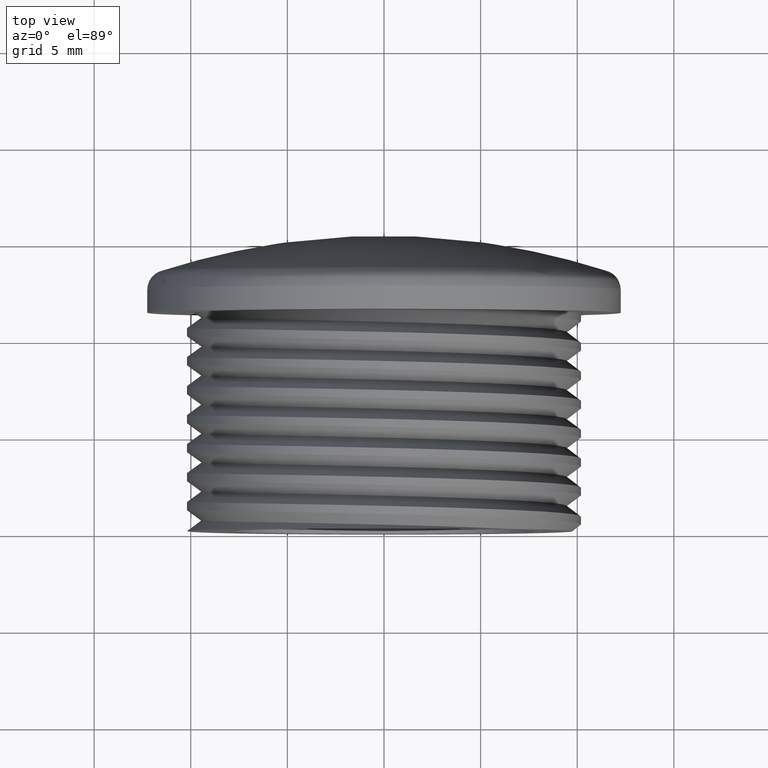
[diagram: clean part render]
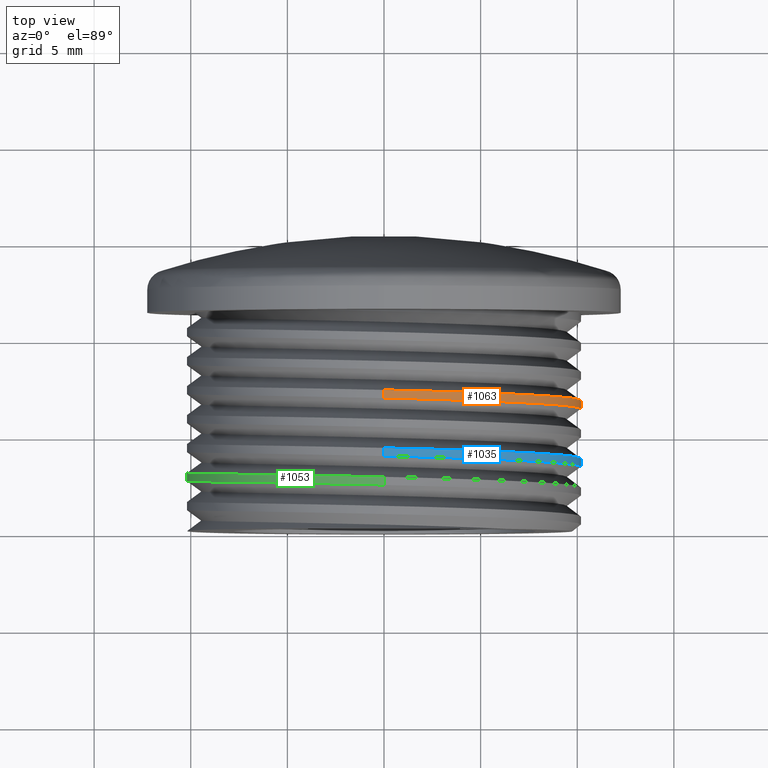
[diagram: same view with three faces highlighted in distinct colors, each labeled with its STEP entity id]
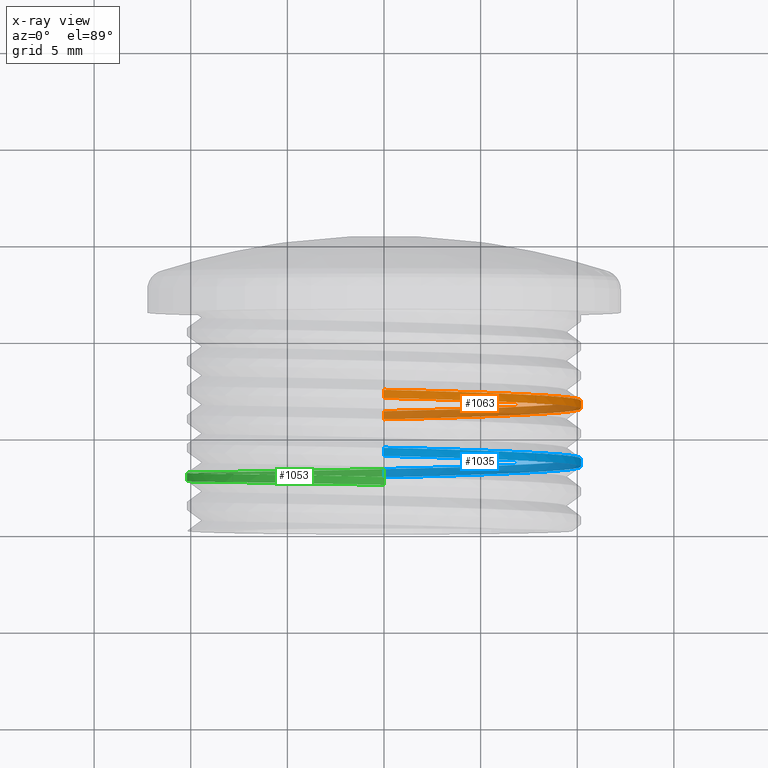
[diagram: x-ray of the same camera — body ghosted, the three highlighted faces saturated]
A machine part, top view with three faces highlighted in distinct colors.
The next image is the same camera in x-ray (body ghosted, the three faces saturated) — at least one of them is partly hidden behind the body in this view.
Their STEP definitions:

[orange] entity #1063 — the highlighted cylindrical surface (partial cylindrical patch) has radius 10.2 mm, axis along (-0, -1, -0).
#395 = VERTEX_POINT ( 'NONE', #880 ) ;
#412 = VERTEX_POINT ( 'NONE', #481 ) ;
#432 = VERTEX_POINT ( 'NONE', #492 ) ;
#444 = VERTEX_POINT ( 'NONE', #507 ) ;
#481 = CARTESIAN_POINT ( 'NONE',  ( -1.873709602695449700E-015, 6.771218227850093600, 10.19999999999999800 ) ) ;
#492 = CARTESIAN_POINT ( 'NONE',  ( -1.873709602695450400E-015, 7.194690285272764100, 10.20000000000000100 ) ) ;
#507 = CARTESIAN_POINT ( 'NONE',  ( 6.245698675651501800E-016, 6.021218227850093600, -10.19999999999999900 ) ) ;
#585 = CARTESIAN_POINT ( 'NONE',  ( 4.224978336205571100, 7.100940285272765000, 10.19999999999999900 ) ) ;
#592 = CARTESIAN_POINT ( 'NONE',  ( 10.19999999999999800, 6.819690285272764100, 2.498279470260600300E-015 ) ) ;
#593 = CARTESIAN_POINT ( 'NONE',  ( 10.19999999999999900, 6.913440285272764100, 4.224978336205575500 ) ) ;
#603 = CARTESIAN_POINT ( 'NONE',  ( 7.212489168102782100, 7.007190285272765000, 7.212489168102784700 ) ) ;
#604 = CARTESIAN_POINT ( 'NONE',  ( -1.873709602695450400E-015, 7.194690285272764100, 10.20000000000000100 ) ) ;
#615 = CARTESIAN_POINT ( 'NONE',  ( 4.224978336194843600, 6.538440285272431000, -10.20000000001072500 ) ) ;
#625 = CARTESIAN_POINT ( 'NONE',  ( 7.212489168102783800, 6.632190285272765000, -7.212489168102782100 ) ) ;
#627 = CARTESIAN_POINT ( 'NONE',  ( 10.19999999999999900, 6.725940285272765900, -4.224978336205567500 ) ) ;
#634 = CARTESIAN_POINT ( 'NONE',  ( -2.589704294783110600E-011, 6.444690285272189500, -10.20000000000000100 ) ) ;
#710 = ORIENTED_EDGE ( 'NONE', *, *, #958, .T. ) ;
#711 = ORIENTED_EDGE ( 'NONE', *, *, #945, .T. ) ;
#757 = ORIENTED_EDGE ( 'NONE', *, *, #959, .F. ) ;
#761 = ORIENTED_EDGE ( 'NONE', *, *, #968, .T. ) ;
#880 = CARTESIAN_POINT ( 'NONE',  ( -2.589704294783110600E-011, 6.444690285272189500, -10.20000000000000100 ) ) ;
#887 = EDGE_LOOP ( 'NONE', ( #711, #710, #761, #757 ) ) ;
#945 = EDGE_CURVE ( 'NONE', #395, #432, #2822, .T. ) ;
#958 = EDGE_CURVE ( 'NONE', #432, #412, #1981, .T. ) ;
#959 = EDGE_CURVE ( 'NONE', #395, #444, #2893, .T. ) ;
#968 = EDGE_CURVE ( 'NONE', #412, #444, #2816, .T. ) ;
#1063 = ADVANCED_FACE ( 'NONE', ( #1416 ), #1389, .T. ) ;
#1384 = DIRECTION ( 'NONE',  ( 0.0000000000000000000, 0.0000000000000000000, -1.000000000000000000 ) ) ;
#1389 = CYLINDRICAL_SURFACE ( 'NONE', #2292, 10.19999999999999900 ) ;
#1416 = FACE_OUTER_BOUND ( 'NONE', #887, .T. ) ;
#1417 = CARTESIAN_POINT ( 'NONE',  ( 0.0000000000000000000, 43.56375321664928200, 0.0000000000000000000 ) ) ;
#1428 = DIRECTION ( 'NONE',  ( -0.0000000000000000000, -1.000000000000000000, -0.0000000000000000000 ) ) ;
#1981 = LINE ( 'NONE', #1984, #2195 ) ;
#1984 = CARTESIAN_POINT ( 'NONE',  ( 1.249139735130300200E-015, 43.56375321664928200, 10.19999999999999900 ) ) ;
#1985 = DIRECTION ( 'NONE',  ( -0.0000000000000000000, -1.000000000000000000, -0.0000000000000000000 ) ) ;
#2191 = VECTOR ( 'NONE', #2895, 1000.000000000000000 ) ;
#2195 = VECTOR ( 'NONE', #1985, 1000.000000000000000 ) ;
#2292 = AXIS2_PLACEMENT_3D ( 'NONE', #1417, #1428, #1384 ) ;
#2816 =( BOUNDED_CURVE ( )  B_SPLINE_CURVE ( 2, ( #2857, #2861, #2863, #2864, #2858, #2862, #2872, #2867, #2873 ),
 .UNSPECIFIED., .F., .F. ) 
 B_SPLINE_CURVE_WITH_KNOTS ( ( 3, 2, 2, 2, 3 ),
 ( 0.1968861978242698900, 0.2049360629913705700, 0.2129859281584712000, 0.2210357933255718800, 0.2290856584926725100 ),
 .UNSPECIFIED. ) 
 CURVE ( )  GEOMETRIC_REPRESENTATION_ITEM ( )  RATIONAL_B_SPLINE_CURVE ( ( 1.000000000000000000, 0.9238795325112867400, 1.000000000000000000, 0.9238795325112867400, 1.000000000000000000, 0.9238795325112867400, 1.000000000000000000, 0.9238795325112867400, 1.000000000000000000 ) ) 
 REPRESENTATION_ITEM ( '' )  );
#2822 =( BOUNDED_CURVE ( )  B_SPLINE_CURVE ( 2, ( #634, #615, #625, #627, #592, #593, #603, #585, #604 ),
 .UNSPECIFIED., .F., .F. ) 
 B_SPLINE_CURVE_WITH_KNOTS ( ( 3, 2, 2, 2, 3 ),
 ( 0.2827666825476962700, 0.2908159962688231500, 0.2988653099899499800, 0.3069146237110768600, 0.3149639374322036900 ),
 .UNSPECIFIED. ) 
 CURVE ( )  GEOMETRIC_REPRESENTATION_ITEM ( )  RATIONAL_B_SPLINE_CURVE ( ( 1.000000000000252500, 0.9238795325110342700, 1.000000000000000000, 0.9238795325112867400, 1.000000000000000000, 0.9238795325112867400, 1.000000000000000000, 0.9238795325112867400, 1.000000000000000000 ) ) 
 REPRESENTATION_ITEM ( '' )  );
#2857 = CARTESIAN_POINT ( 'NONE',  ( -1.873709602695449700E-015, 6.771218227850093600, 10.19999999999999800 ) ) ;
#2858 = CARTESIAN_POINT ( 'NONE',  ( 10.19999999999999800, 6.396218227850093600, 2.498279470260600700E-015 ) ) ;
#2861 = CARTESIAN_POINT ( 'NONE',  ( 4.224978336205571900, 6.677468227850096300, 10.20000000000000300 ) ) ;
#2862 = CARTESIAN_POINT ( 'NONE',  ( 10.20000000000000300, 6.302468227850093600, -4.224978336205568400 ) ) ;
#2863 = CARTESIAN_POINT ( 'NONE',  ( 7.212489168102783000, 6.583718227850093600, 7.212489168102785600 ) ) ;
#2864 = CARTESIAN_POINT ( 'NONE',  ( 10.20000000000000300, 6.489968227850093600, 4.224978336205575500 ) ) ;
#2867 = CARTESIAN_POINT ( 'NONE',  ( 4.224978336205571900, 6.114968227850092800, -10.20000000000000300 ) ) ;
#2872 = CARTESIAN_POINT ( 'NONE',  ( 7.212489168102783800, 6.208718227850092800, -7.212489168102783000 ) ) ;
#2873 = CARTESIAN_POINT ( 'NONE',  ( 6.245698675651501800E-016, 6.021218227850093600, -10.19999999999999900 ) ) ;
#2893 = LINE ( 'NONE', #2894, #2191 ) ;
#2894 = CARTESIAN_POINT ( 'NONE',  ( 0.0000000000000000000, 43.56375321664928200, -10.19999999999999900 ) ) ;
#2895 = DIRECTION ( 'NONE',  ( -0.0000000000000000000, -1.000000000000000000, -0.0000000000000000000 ) ) ;

[blue] entity #1035 — the highlighted cylindrical surface (partial cylindrical patch) has radius 10.2 mm, axis along (-0, -1, -0).
#23 = CARTESIAN_POINT ( 'NONE',  ( 6.245698675651501800E-016, 3.444690285272764100, -10.19999999999999900 ) ) ;
#24 = CARTESIAN_POINT ( 'NONE',  ( 4.224978336205571900, 3.538440285272765000, -10.20000000000000300 ) ) ;
#409 = VERTEX_POINT ( 'NONE', #906 ) ;
#429 = VERTEX_POINT ( 'NONE', #477 ) ;
#430 = VERTEX_POINT ( 'NONE', #478 ) ;
#475 = VERTEX_POINT ( 'NONE', #518 ) ;
#477 = CARTESIAN_POINT ( 'NONE',  ( 6.245698675651501800E-016, 3.444690285272764100, -10.19999999999999900 ) ) ;
#478 = CARTESIAN_POINT ( 'NONE',  ( -1.873709602695450100E-015, 4.194690285272764100, 10.19999999999999900 ) ) ;
#518 = CARTESIAN_POINT ( 'NONE',  ( -1.873709602695450100E-015, 3.771218227850093600, 10.19999999999999900 ) ) ;
#569 = LINE ( 'NONE', #581, #2173 ) ;
#577 = DIRECTION ( 'NONE',  ( -0.0000000000000000000, -1.000000000000000000, -0.0000000000000000000 ) ) ;
#581 = CARTESIAN_POINT ( 'NONE',  ( 0.0000000000000000000, 43.56375321664928200, -10.19999999999999900 ) ) ;
#589 = CARTESIAN_POINT ( 'NONE',  ( -1.873709602695450100E-015, 3.771218227850093600, 10.19999999999999900 ) ) ;
#590 = CARTESIAN_POINT ( 'NONE',  ( 10.20000000000000500, 3.489968227850095000, 4.224978336205577300 ) ) ;
#594 = CARTESIAN_POINT ( 'NONE',  ( 4.224978336205560400, 3.114968227850094500, -10.20000000000002100 ) ) ;
#621 = CARTESIAN_POINT ( 'NONE',  ( 4.224978336205572800, 3.677468227850094100, 10.20000000000000500 ) ) ;
#622 = CARTESIAN_POINT ( 'NONE',  ( 6.245698675651500800E-016, 3.021218227850091900, -10.19999999999999800 ) ) ;
#623 = CARTESIAN_POINT ( 'NONE',  ( 7.212489168102784700, 3.583718227850094500, 7.212489168102786500 ) ) ;
#624 = CARTESIAN_POINT ( 'NONE',  ( 10.20000000000000100, 3.396218227850095000, 2.498279470260601100E-015 ) ) ;
#632 = CARTESIAN_POINT ( 'NONE',  ( 10.20000000000000500, 3.302468227850094500, -4.224978336205569300 ) ) ;
#633 = CARTESIAN_POINT ( 'NONE',  ( 7.212489168102785600, 3.208718227850094100, -7.212489168102784700 ) ) ;
#704 = ORIENTED_EDGE ( 'NONE', *, *, #944, .T. ) ;
#708 = ORIENTED_EDGE ( 'NONE', *, *, #957, .T. ) ;
#713 = ORIENTED_EDGE ( 'NONE', *, *, #963, .T. ) ;
#716 = ORIENTED_EDGE ( 'NONE', *, *, #941, .F. ) ;
#894 = EDGE_LOOP ( 'NONE', ( #713, #708, #704, #716 ) ) ;
#906 = CARTESIAN_POINT ( 'NONE',  ( 6.245698675651500800E-016, 3.021218227850091900, -10.19999999999999800 ) ) ;
#941 = EDGE_CURVE ( 'NONE', #429, #409, #569, .T. ) ;
#944 = EDGE_CURVE ( 'NONE', #475, #409, #2815, .T. ) ;
#957 = EDGE_CURVE ( 'NONE', #430, #475, #1987, .T. ) ;
#963 = EDGE_CURVE ( 'NONE', #429, #430, #2830, .T. ) ;
#1035 = ADVANCED_FACE ( 'NONE', ( #2016 ), #2002, .T. ) ;
#1714 = CARTESIAN_POINT ( 'NONE',  ( 4.224978336205571900, 4.100940285272765000, 10.20000000000000300 ) ) ;
#1716 = CARTESIAN_POINT ( 'NONE',  ( 7.212489168102783800, 4.007190285272763200, 7.212489168102785600 ) ) ;
#1718 = CARTESIAN_POINT ( 'NONE',  ( 10.20000000000000300, 3.725940285272764600, -4.224978336205568400 ) ) ;
#1719 = CARTESIAN_POINT ( 'NONE',  ( 7.212489168102784700, 3.632190285272764600, -7.212489168102783800 ) ) ;
#1720 = CARTESIAN_POINT ( 'NONE',  ( 10.19999999999999800, 3.819690285272764600, 2.498279470260600700E-015 ) ) ;
#1721 = CARTESIAN_POINT ( 'NONE',  ( -1.873709602695450100E-015, 4.194690285272764100, 10.19999999999999900 ) ) ;
#1723 = CARTESIAN_POINT ( 'NONE',  ( 10.20000000000000300, 3.913440285272765400, 4.224978336205575500 ) ) ;
#1979 = CARTESIAN_POINT ( 'NONE',  ( 1.249139735130300200E-015, 43.56375321664928200, 10.19999999999999900 ) ) ;
#1980 = DIRECTION ( 'NONE',  ( -0.0000000000000000000, -1.000000000000000000, -0.0000000000000000000 ) ) ;
#1987 = LINE ( 'NONE', #1979, #2218 ) ;
#2002 = CYLINDRICAL_SURFACE ( 'NONE', #2266, 10.19999999999999900 ) ;
#2008 = DIRECTION ( 'NONE',  ( 0.0000000000000000000, 0.0000000000000000000, -1.000000000000000000 ) ) ;
#2016 = FACE_OUTER_BOUND ( 'NONE', #894, .T. ) ;
#2017 = DIRECTION ( 'NONE',  ( -0.0000000000000000000, -1.000000000000000000, -0.0000000000000000000 ) ) ;
#2018 = CARTESIAN_POINT ( 'NONE',  ( 0.0000000000000000000, 43.56375321664928200, 0.0000000000000000000 ) ) ;
#2173 = VECTOR ( 'NONE', #577, 1000.000000000000000 ) ;
#2218 = VECTOR ( 'NONE', #1980, 1000.000000000000000 ) ;
#2266 = AXIS2_PLACEMENT_3D ( 'NONE', #2018, #2017, #2008 ) ;
#2815 =( BOUNDED_CURVE ( )  B_SPLINE_CURVE ( 2, ( #589, #621, #623, #590, #624, #632, #633, #594, #622 ),
 .UNSPECIFIED., .F., .T. ) 
 B_SPLINE_CURVE_WITH_KNOTS ( ( 3, 2, 2, 2, 3 ),
 ( 0.3256693207485801300, 0.3337185120556136500, 0.3417677033626471700, 0.3498168946696806900, 0.3578660859767142100 ),
 .UNSPECIFIED. ) 
 CURVE ( )  GEOMETRIC_REPRESENTATION_ITEM ( )  RATIONAL_B_SPLINE_CURVE ( ( 1.000000000000000000, 0.9238795325112867400, 1.000000000000000000, 0.9238795325112867400, 1.000000000000000000, 0.9238795325112867400, 1.000000000000000000, 0.9238795325112864100, 1.000000000000000200 ) ) 
 REPRESENTATION_ITEM ( '' )  );
#2830 =( BOUNDED_CURVE ( )  B_SPLINE_CURVE ( 2, ( #23, #24, #1719, #1718, #1720, #1723, #1716, #1714, #1721 ),
 .UNSPECIFIED., .F., .T. ) 
 B_SPLINE_CURVE_WITH_KNOTS ( ( 3, 2, 2, 2, 3 ),
 ( 0.1539921737597743900, 0.1620395801039442000, 0.1700869864481139900, 0.1781343927922838000, 0.1861817991364536100 ),
 .UNSPECIFIED. ) 
 CURVE ( )  GEOMETRIC_REPRESENTATION_ITEM ( )  RATIONAL_B_SPLINE_CURVE ( ( 1.000000000000000000, 0.9238795325112867400, 1.000000000000000000, 0.9238795325112867400, 1.000000000000000000, 0.9238795325112867400, 1.000000000000000000, 0.9238795325112867400, 1.000000000000000000 ) ) 
 REPRESENTATION_ITEM ( '' )  );

[green] entity #1053 — the highlighted cylindrical surface (partial cylindrical patch) has radius 10.2 mm, axis along (-0, -1, -0).
#409 = VERTEX_POINT ( 'NONE', #906 ) ;
#426 = VERTEX_POINT ( 'NONE', #465 ) ;
#429 = VERTEX_POINT ( 'NONE', #477 ) ;
#441 = VERTEX_POINT ( 'NONE', #528 ) ;
#465 = CARTESIAN_POINT ( 'NONE',  ( -1.873709602695450100E-015, 2.694690285272763200, 10.19999999999999900 ) ) ;
#477 = CARTESIAN_POINT ( 'NONE',  ( 6.245698675651501800E-016, 3.444690285272764100, -10.19999999999999900 ) ) ;
#528 = CARTESIAN_POINT ( 'NONE',  ( -1.282589943222705400E-011, 2.271218227850378300, 10.20000000000000100 ) ) ;
#569 = LINE ( 'NONE', #581, #2173 ) ;
#577 = DIRECTION ( 'NONE',  ( -0.0000000000000000000, -1.000000000000000000, -0.0000000000000000000 ) ) ;
#581 = CARTESIAN_POINT ( 'NONE',  ( 0.0000000000000000000, 43.56375321664928200, -10.19999999999999900 ) ) ;
#779 = ORIENTED_EDGE ( 'NONE', *, *, #1019, .T. ) ;
#786 = ORIENTED_EDGE ( 'NONE', *, *, #964, .F. ) ;
#796 = ORIENTED_EDGE ( 'NONE', *, *, #986, .T. ) ;
#833 = ORIENTED_EDGE ( 'NONE', *, *, #941, .T. ) ;
#906 = CARTESIAN_POINT ( 'NONE',  ( 6.245698675651500800E-016, 3.021218227850091900, -10.19999999999999800 ) ) ;
#922 = EDGE_LOOP ( 'NONE', ( #786, #779, #833, #796 ) ) ;
#941 = EDGE_CURVE ( 'NONE', #429, #409, #569, .T. ) ;
#964 = EDGE_CURVE ( 'NONE', #426, #441, #1729, .T. ) ;
#986 = EDGE_CURVE ( 'NONE', #409, #441, #2843, .T. ) ;
#1019 = EDGE_CURVE ( 'NONE', #426, #429, #2836, .T. ) ;
#1053 = ADVANCED_FACE ( 'NONE', ( #1327 ), #1366, .T. ) ;
#1327 = FACE_OUTER_BOUND ( 'NONE', #922, .T. ) ;
#1339 = CARTESIAN_POINT ( 'NONE',  ( 0.0000000000000000000, 43.56375321664928200, 0.0000000000000000000 ) ) ;
#1346 = DIRECTION ( 'NONE',  ( -0.0000000000000000000, -1.000000000000000000, -0.0000000000000000000 ) ) ;
#1350 = DIRECTION ( 'NONE',  ( 0.0000000000000000000, 0.0000000000000000000, -1.000000000000000000 ) ) ;
#1366 = CYLINDRICAL_SURFACE ( 'NONE', #2245, 10.19999999999999900 ) ;
#1729 = LINE ( 'NONE', #1731, #2193 ) ;
#1731 = CARTESIAN_POINT ( 'NONE',  ( 1.249139735130300200E-015, 43.56375321664928200, 10.19999999999999900 ) ) ;
#1733 = DIRECTION ( 'NONE',  ( -0.0000000000000000000, -1.000000000000000000, -0.0000000000000000000 ) ) ;
#2173 = VECTOR ( 'NONE', #577, 1000.000000000000000 ) ;
#2193 = VECTOR ( 'NONE', #1733, 1000.000000000000000 ) ;
#2245 = AXIS2_PLACEMENT_3D ( 'NONE', #1339, #1346, #1350 ) ;
#2355 = CARTESIAN_POINT ( 'NONE',  ( -10.20000000000000100, 2.552468227850095400, 4.224978336205567500 ) ) ;
#2356 = CARTESIAN_POINT ( 'NONE',  ( -10.20000000000000100, 2.646218227850094500, -1.249139735130300600E-015 ) ) ;
#2360 = CARTESIAN_POINT ( 'NONE',  ( -10.20000000000000100, 2.739968227850094100, -4.224978336205572800 ) ) ;
#2362 = CARTESIAN_POINT ( 'NONE',  ( 6.245698675651500800E-016, 3.021218227850091900, -10.19999999999999800 ) ) ;
#2364 = CARTESIAN_POINT ( 'NONE',  ( -7.212489168102785600, 2.458718227850094100, 7.212489168102783800 ) ) ;
#2365 = CARTESIAN_POINT ( 'NONE',  ( -4.224978336210887700, 2.364968227850261500, 10.19999999999469300 ) ) ;
#2373 = CARTESIAN_POINT ( 'NONE',  ( -1.282589943222705400E-011, 2.271218227850378300, 10.20000000000000100 ) ) ;
#2376 = CARTESIAN_POINT ( 'NONE',  ( -7.212489168102783800, 2.833718227850093600, -7.212489168102784700 ) ) ;
#2378 = CARTESIAN_POINT ( 'NONE',  ( -4.224978336205582600, 2.927468227850094100, -10.19999999999999200 ) ) ;
#2670 = CARTESIAN_POINT ( 'NONE',  ( -1.873709602695450100E-015, 2.694690285272763200, 10.19999999999999900 ) ) ;
#2681 = CARTESIAN_POINT ( 'NONE',  ( -10.19999999999999600, 3.069690285272766300, -1.249139735130300200E-015 ) ) ;
#2693 = CARTESIAN_POINT ( 'NONE',  ( -10.20000000000000100, 2.975940285272766800, 4.224978336205566600 ) ) ;
#2703 = CARTESIAN_POINT ( 'NONE',  ( -4.224978336205567500, 3.350940285272765400, -10.20000000000000100 ) ) ;
#2704 = CARTESIAN_POINT ( 'NONE',  ( -4.224978336205573700, 2.788440285272765400, 10.20000000000000100 ) ) ;
#2713 = CARTESIAN_POINT ( 'NONE',  ( 6.245698675651501800E-016, 3.444690285272764100, -10.19999999999999900 ) ) ;
#2717 = CARTESIAN_POINT ( 'NONE',  ( -10.20000000000000100, 3.163440285272765400, -4.224978336205571100 ) ) ;
#2723 = CARTESIAN_POINT ( 'NONE',  ( -7.212489168102781200, 3.257190285272765400, -7.212489168102782100 ) ) ;
#2724 = CARTESIAN_POINT ( 'NONE',  ( -7.212489168102783000, 2.882190285272765900, 7.212489168102781200 ) ) ;
#2836 =( BOUNDED_CURVE ( )  B_SPLINE_CURVE ( 2, ( #2670, #2704, #2724, #2693, #2681, #2717, #2723, #2703, #2713 ),
 .UNSPECIFIED., .F., .F. ) 
 B_SPLINE_CURVE_WITH_KNOTS ( ( 3, 2, 2, 2, 3 ),
 ( 0.1217968341465024600, 0.1298456690498204500, 0.1378945039531384300, 0.1459433388564564100, 0.1539921737597743900 ),
 .UNSPECIFIED. ) 
 CURVE ( )  GEOMETRIC_REPRESENTATION_ITEM ( )  RATIONAL_B_SPLINE_CURVE ( ( 1.000000000000000000, 0.9238795325112867400, 1.000000000000000000, 0.9238795325112867400, 1.000000000000000000, 0.9238795325112867400, 1.000000000000000000, 0.9238795325112867400, 1.000000000000000000 ) ) 
 REPRESENTATION_ITEM ( '' )  );
#2843 =( BOUNDED_CURVE ( )  B_SPLINE_CURVE ( 2, ( #2362, #2378, #2376, #2360, #2356, #2355, #2364, #2365, #2373 ),
 .UNSPECIFIED., .F., .F. ) 
 B_SPLINE_CURVE_WITH_KNOTS ( ( 3, 2, 2, 2, 3 ),
 ( 0.3578660859767142100, 0.3659133439498796800, 0.3739606019230451400, 0.3820078598962106100, 0.3900551178693760800 ),
 .UNSPECIFIED. ) 
 CURVE ( )  GEOMETRIC_REPRESENTATION_ITEM ( )  RATIONAL_B_SPLINE_CURVE ( ( 0.9999999999999996700, 0.9238795325112869600, 1.000000000000000000, 0.9238795325112866300, 1.000000000000000000, 0.9238795325112866300, 1.000000000000000000, 0.9238795325114116400, 0.9999999999998749900 ) ) 
 REPRESENTATION_ITEM ( '' )  );